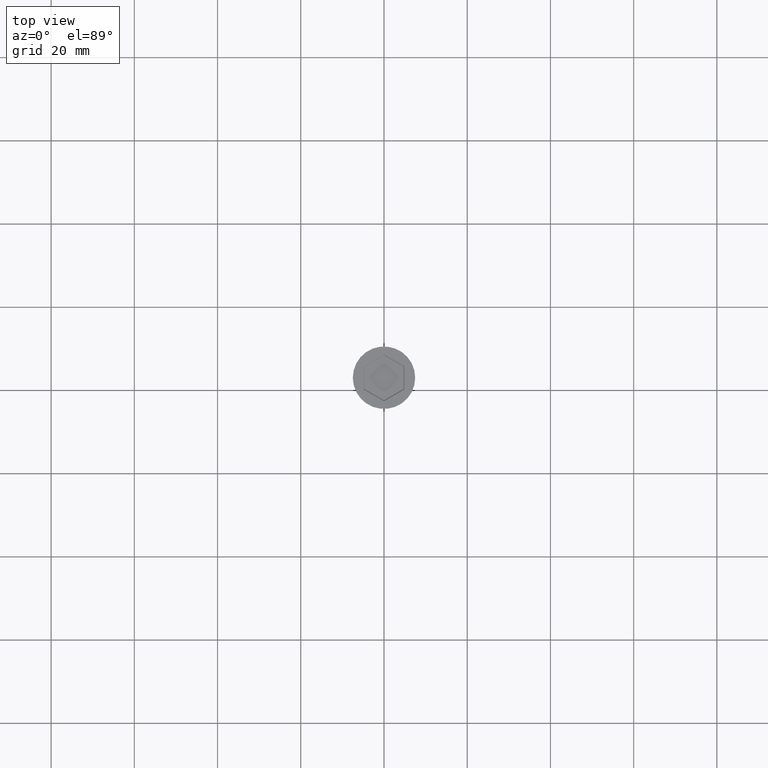
[diagram: clean part render]
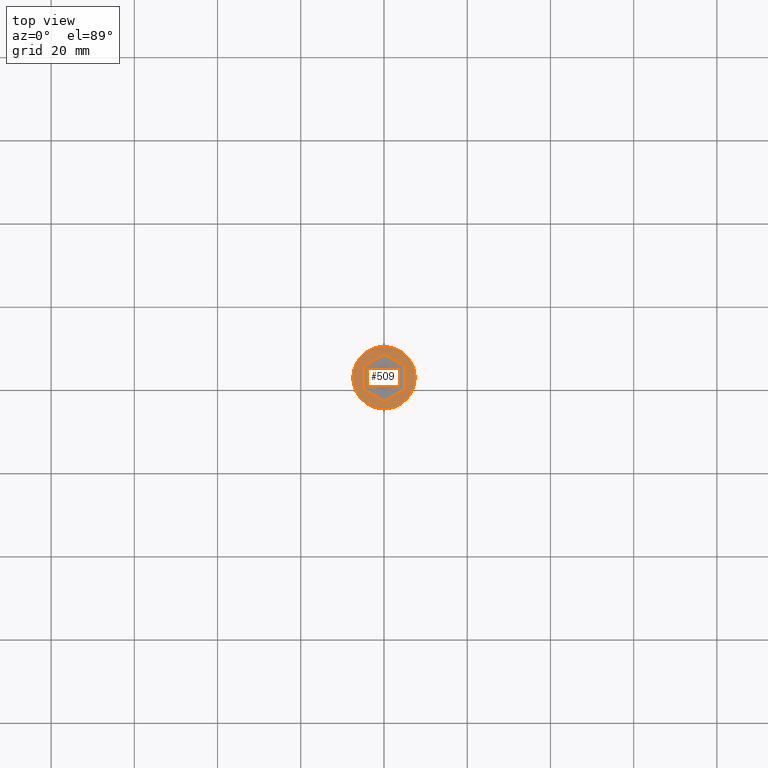
[diagram: same view with one face highlighted and labeled with its STEP entity id]
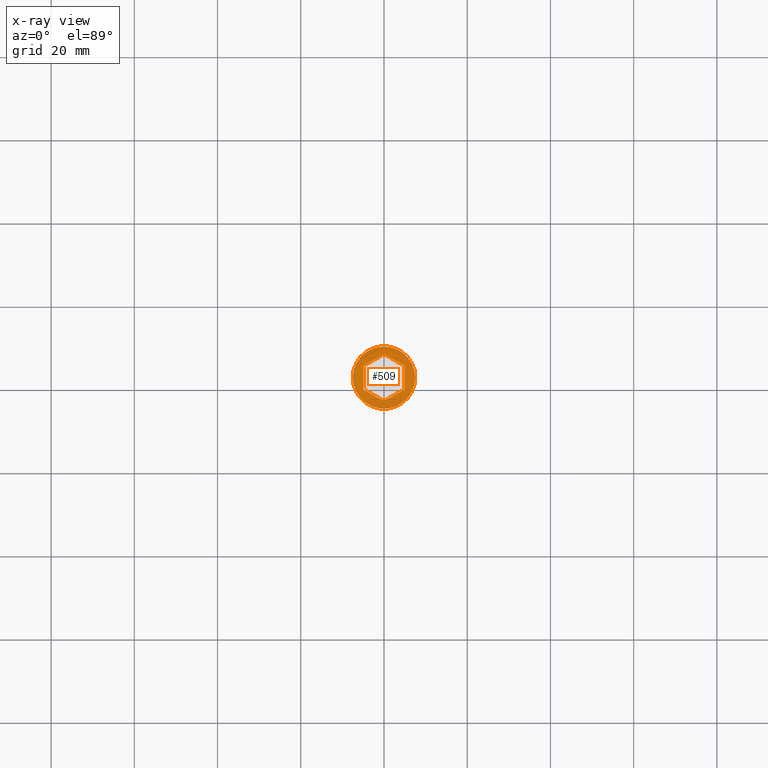
[diagram: x-ray of the same camera — body ghosted, the highlighted face saturated]
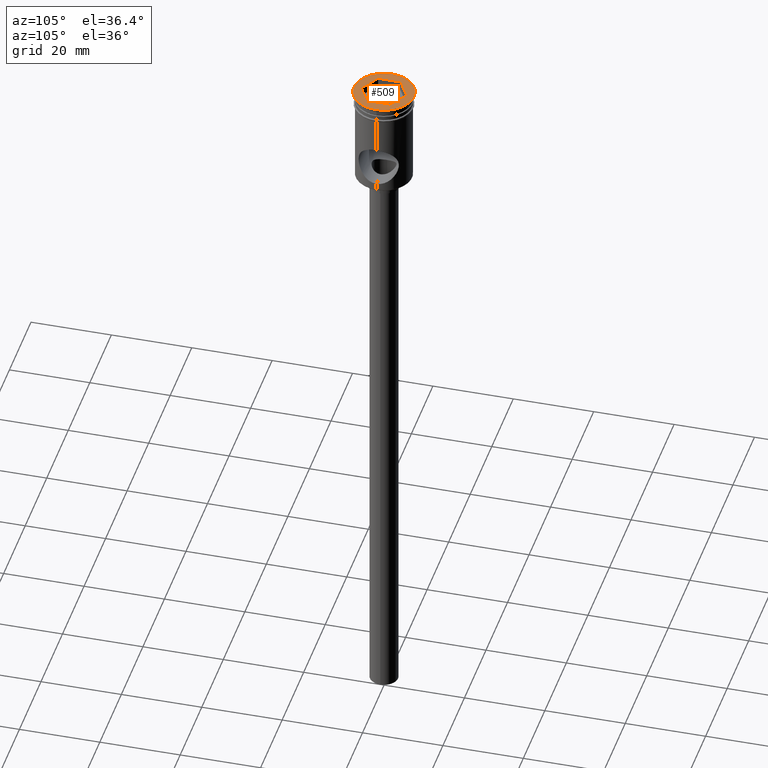
[diagram: same view with one face highlighted and labeled with its STEP entity id]
A machine part, top view. The second image highlights one B-rep face of the part: STEP entity #509.
The next image is the same camera in x-ray: the body ghosted, the highlighted face saturated — about 0% of this face is hidden behind the body in this view.
A second angle (auxiliary view) of the same face is appended — the face is thin or edge-on in the first view.
In plain terms, the highlighted planar face has unit normal (0, -0, 1).
Its self-contained STEP definition (entity closure, byte-faithful):
#7 = LINE ( 'NONE', #923, #1060 ) ;
#20 = VECTOR ( 'NONE', #1112, 1000.000000000000000 ) ;
#29 = CARTESIAN_POINT ( 'NONE',  ( 4.899999999999994138, -2.829016319029163729, 0.000000000000000000 ) ) ;
#43 = CARTESIAN_POINT ( 'NONE',  ( -4.899999999999994138, 2.829016319029163729, 0.000000000000000000 ) ) ;
#45 = ORIENTED_EDGE ( 'NONE', *, *, #813, .T. ) ;
#53 = LINE ( 'NONE', #846, #816 ) ;
#68 = CIRCLE ( 'NONE', #371, 7.500000000000000000 ) ;
#79 = PLANE ( 'NONE',  #832 ) ;
#156 = EDGE_CURVE ( 'NONE', #943, #950, #1384, .T. ) ;
#159 = VERTEX_POINT ( 'NONE', #43 ) ;
#208 = FACE_BOUND ( 'NONE', #1376, .T. ) ;
#210 = CARTESIAN_POINT ( 'NONE',  ( 0.000000000000000000, 0.000000000000000000, 0.000000000000000000 ) ) ;
#231 = VERTEX_POINT ( 'NONE', #634 ) ;
#254 = EDGE_CURVE ( 'NONE', #950, #943, #68, .T. ) ;
#274 = CARTESIAN_POINT ( 'NONE',  ( 0.000000000000000000, 0.000000000000000000, 0.000000000000000000 ) ) ;
#277 = AXIS2_PLACEMENT_3D ( 'NONE', #274, #740, #616 ) ;
#279 = VECTOR ( 'NONE', #457, 1000.000000000000114 ) ;
#284 = VERTEX_POINT ( 'NONE', #439 ) ;
#360 = DIRECTION ( 'NONE',  ( 0.8660254037844387076, 0.4999999999999998890, 0.000000000000000000 ) ) ;
#362 = EDGE_CURVE ( 'NONE', #499, #159, #7, .T. ) ;
#367 = CARTESIAN_POINT ( 'NONE',  ( 7.500000000000000000, 0.000000000000000000, 0.000000000000000000 ) ) ;
#370 = ORIENTED_EDGE ( 'NONE', *, *, #254, .T. ) ;
#371 = AXIS2_PLACEMENT_3D ( 'NONE', #210, #660, #1117 ) ;
#425 = VECTOR ( 'NONE', #1076, 999.9999999999998863 ) ;
#439 = CARTESIAN_POINT ( 'NONE',  ( -3.203600579260160317E-16, -5.658032638058326569, 0.000000000000000000 ) ) ;
#457 = DIRECTION ( 'NONE',  ( 0.8660254037844385966, -0.5000000000000001110, 0.000000000000000000 ) ) ;
#460 = VERTEX_POINT ( 'NONE', #847 ) ;
#484 = ORIENTED_EDGE ( 'NONE', *, *, #1335, .T. ) ;
#499 = VERTEX_POINT ( 'NONE', #1085 ) ;
#509 = ADVANCED_FACE ( 'NONE', ( #208, #1109 ), #79, .T. ) ;
#548 = ORIENTED_EDGE ( 'NONE', *, *, #362, .T. ) ;
#581 = VECTOR ( 'NONE', #360, 1000.000000000000000 ) ;
#583 = ORIENTED_EDGE ( 'NONE', *, *, #1399, .T. ) ;
#586 = EDGE_CURVE ( 'NONE', #231, #460, #1357, .T. ) ;
#616 = DIRECTION ( 'NONE',  ( 1.000000000000000000, 0.000000000000000000, 0.000000000000000000 ) ) ;
#634 = CARTESIAN_POINT ( 'NONE',  ( -7.915723921244255173E-16, 5.658032638058325681, 0.000000000000000000 ) ) ;
#635 = ORIENTED_EDGE ( 'NONE', *, *, #156, .T. ) ;
#660 = DIRECTION ( 'NONE',  ( -0.000000000000000000, -0.000000000000000000, 1.000000000000000000 ) ) ;
#674 = CARTESIAN_POINT ( 'NONE',  ( 4.799999999999996270, 2.886751345948122882, 0.000000000000000000 ) ) ;
#704 = CARTESIAN_POINT ( 'NONE',  ( -4.799999999999996270, -2.886751345948123770, 0.000000000000000000 ) ) ;
#740 = DIRECTION ( 'NONE',  ( -0.000000000000000000, -0.000000000000000000, 1.000000000000000000 ) ) ;
#813 = EDGE_CURVE ( 'NONE', #284, #499, #815, .T. ) ;
#815 = LINE ( 'NONE', #704, #425 ) ;
#816 = VECTOR ( 'NONE', #1337, 1000.000000000000000 ) ;
#822 = ORIENTED_EDGE ( 'NONE', *, *, #1444, .T. ) ;
#826 = CARTESIAN_POINT ( 'NONE',  ( -0.09999999999999770184, 5.600297611139364307, 0.000000000000000000 ) ) ;
#832 = AXIS2_PLACEMENT_3D ( 'NONE', #1451, #1341, #1115 ) ;
#846 = CARTESIAN_POINT ( 'NONE',  ( 4.899999999999994138, -2.713546265191241869, 0.000000000000000000 ) ) ;
#847 = CARTESIAN_POINT ( 'NONE',  ( 4.899999999999995026, 2.829016319029161508, 0.000000000000000000 ) ) ;
#923 = CARTESIAN_POINT ( 'NONE',  ( -4.899999999999994138, 2.713546265191240536, 0.000000000000000000 ) ) ;
#943 = VERTEX_POINT ( 'NONE', #367 ) ;
#950 = VERTEX_POINT ( 'NONE', #1228 ) ;
#970 = CARTESIAN_POINT ( 'NONE',  ( 0.09999999999999630018, -5.600297611139365195, 0.000000000000000000 ) ) ;
#984 = LINE ( 'NONE', #970, #20 ) ;
#1030 = DIRECTION ( 'NONE',  ( 0.000000000000000000, 1.000000000000000000, 0.000000000000000000 ) ) ;
#1060 = VECTOR ( 'NONE', #1030, 1000.000000000000000 ) ;
#1076 = DIRECTION ( 'NONE',  ( -0.8660254037844385966, 0.5000000000000002220, 0.000000000000000000 ) ) ;
#1085 = CARTESIAN_POINT ( 'NONE',  ( -4.899999999999994138, -2.829016319029162840, 0.000000000000000000 ) ) ;
#1109 = FACE_OUTER_BOUND ( 'NONE', #1383, .T. ) ;
#1112 = DIRECTION ( 'NONE',  ( -0.8660254037844387076, -0.4999999999999998890, 0.000000000000000000 ) ) ;
#1115 = DIRECTION ( 'NONE',  ( 1.000000000000000000, 0.000000000000000000, 0.000000000000000000 ) ) ;
#1117 = DIRECTION ( 'NONE',  ( 1.000000000000000000, 0.000000000000000000, 0.000000000000000000 ) ) ;
#1228 = CARTESIAN_POINT ( 'NONE',  ( -7.500000000000000000, 9.184850993605147944E-16, 0.000000000000000000 ) ) ;
#1305 = ORIENTED_EDGE ( 'NONE', *, *, #586, .T. ) ;
#1310 = VERTEX_POINT ( 'NONE', #29 ) ;
#1335 = EDGE_CURVE ( 'NONE', #159, #231, #1398, .T. ) ;
#1337 = DIRECTION ( 'NONE',  ( -1.598207019933148115E-16, -1.000000000000000000, 0.000000000000000000 ) ) ;
#1341 = DIRECTION ( 'NONE',  ( 0.000000000000000000, -0.000000000000000000, 1.000000000000000000 ) ) ;
#1357 = LINE ( 'NONE', #674, #279 ) ;
#1376 = EDGE_LOOP ( 'NONE', ( #45, #548, #484, #1305, #822, #583 ) ) ;
#1383 = EDGE_LOOP ( 'NONE', ( #635, #370 ) ) ;
#1384 = CIRCLE ( 'NONE', #277, 7.500000000000000000 ) ;
#1398 = LINE ( 'NONE', #826, #581 ) ;
#1399 = EDGE_CURVE ( 'NONE', #1310, #284, #984, .T. ) ;
#1444 = EDGE_CURVE ( 'NONE', #460, #1310, #53, .T. ) ;
#1451 = CARTESIAN_POINT ( 'NONE',  ( 0.000000000000000000, 0.000000000000000000, 0.000000000000000000 ) ) ;